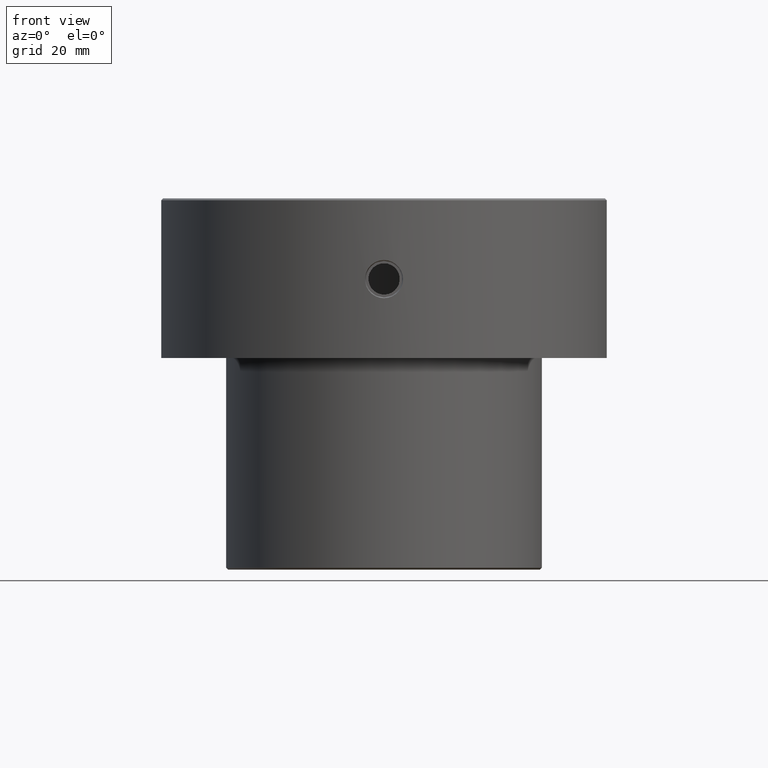
[diagram: clean part render]
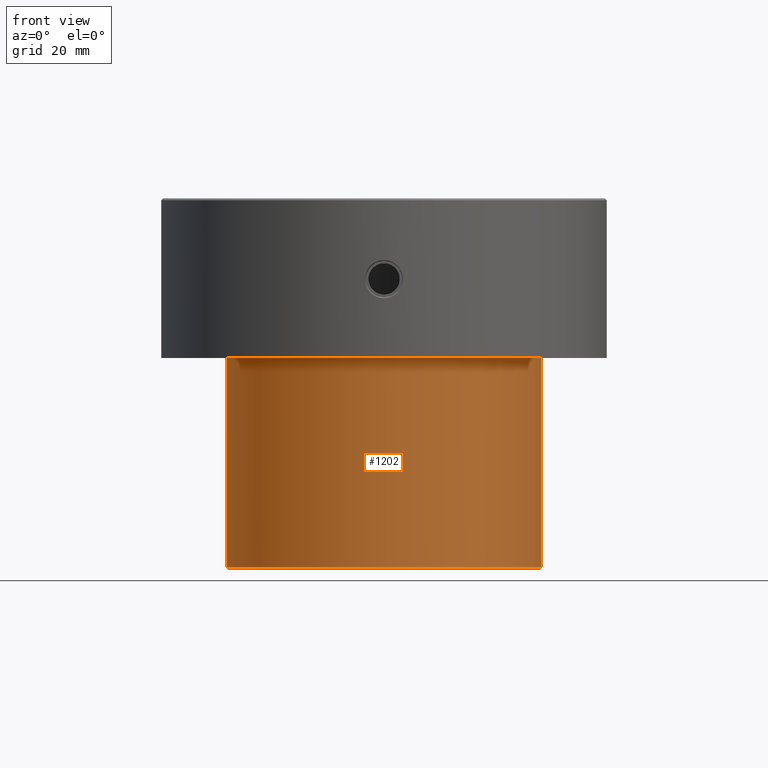
[diagram: same view with one face highlighted and labeled with its STEP entity id]
A machine part, front view. The second image highlights one B-rep face of the part: STEP entity #1202.
In plain terms, the highlighted cylindrical surface (partial cylindrical patch) has radius 42.5 mm, axis along (-0, -0, 1).
Its self-contained STEP definition (entity closure, byte-faithful):
#39 = CARTESIAN_POINT ( 'NONE',  ( 0.000000000000000000, 0.000000000000000000, 0.000000000000000000 ) ) ;
#102 = ORIENTED_EDGE ( 'NONE', *, *, #1187, .T. ) ;
#115 = VERTEX_POINT ( 'NONE', #488 ) ;
#143 = VERTEX_POINT ( 'NONE', #1073 ) ;
#221 = AXIS2_PLACEMENT_3D ( 'NONE', #606, #1003, #907 ) ;
#309 = DIRECTION ( 'NONE',  ( 1.000000000000000000, 0.000000000000000000, 0.000000000000000000 ) ) ;
#371 = ORIENTED_EDGE ( 'NONE', *, *, #492, .T. ) ;
#408 = EDGE_LOOP ( 'NONE', ( #1042, #102, #371, #1221 ) ) ;
#446 = AXIS2_PLACEMENT_3D ( 'NONE', #804, #1107, #309 ) ;
#459 = VECTOR ( 'NONE', #751, 1000.000000000000000 ) ;
#460 = LINE ( 'NONE', #750, #663 ) ;
#488 = CARTESIAN_POINT ( 'NONE',  ( -42.50000000000000000, 5.204748896376250896E-15, -99.50000000000000000 ) ) ;
#492 = EDGE_CURVE ( 'NONE', #143, #1230, #655, .T. ) ;
#580 = AXIS2_PLACEMENT_3D ( 'NONE', #39, #782, #1069 ) ;
#606 = CARTESIAN_POINT ( 'NONE',  ( 0.000000000000000000, 0.000000000000000000, -99.50000000000000000 ) ) ;
#655 = LINE ( 'NONE', #727, #459 ) ;
#663 = VECTOR ( 'NONE', #1236, 1000.000000000000000 ) ;
#727 = CARTESIAN_POINT ( 'NONE',  ( 42.50000000000000000, 0.000000000000000000, 0.000000000000000000 ) ) ;
#750 = CARTESIAN_POINT ( 'NONE',  ( -42.50000000000000000, 5.204748896376250896E-15, 0.000000000000000000 ) ) ;
#751 = DIRECTION ( 'NONE',  ( -0.000000000000000000, -0.000000000000000000, 1.000000000000000000 ) ) ;
#782 = DIRECTION ( 'NONE',  ( -0.000000000000000000, -0.000000000000000000, 1.000000000000000000 ) ) ;
#797 = VERTEX_POINT ( 'NONE', #847 ) ;
#804 = CARTESIAN_POINT ( 'NONE',  ( 0.000000000000000000, 0.000000000000000000, -43.00000000000000000 ) ) ;
#847 = CARTESIAN_POINT ( 'NONE',  ( -42.50000000000000000, 5.204748896376250896E-15, -43.00000000000000000 ) ) ;
#885 = EDGE_CURVE ( 'NONE', #115, #797, #460, .T. ) ;
#888 = CYLINDRICAL_SURFACE ( 'NONE', #580, 42.50000000000000000 ) ;
#907 = DIRECTION ( 'NONE',  ( -1.000000000000000000, 0.000000000000000000, 0.000000000000000000 ) ) ;
#914 = FACE_OUTER_BOUND ( 'NONE', #408, .T. ) ;
#997 = CIRCLE ( 'NONE', #446, 42.50000000000000000 ) ;
#1003 = DIRECTION ( 'NONE',  ( -0.000000000000000000, -0.000000000000000000, 1.000000000000000000 ) ) ;
#1042 = ORIENTED_EDGE ( 'NONE', *, *, #885, .F. ) ;
#1069 = DIRECTION ( 'NONE',  ( 1.000000000000000000, 0.000000000000000000, 0.000000000000000000 ) ) ;
#1073 = CARTESIAN_POINT ( 'NONE',  ( 42.50000000000000000, 0.000000000000000000, -99.50000000000000000 ) ) ;
#1096 = EDGE_CURVE ( 'NONE', #797, #1230, #997, .T. ) ;
#1107 = DIRECTION ( 'NONE',  ( -0.000000000000000000, -0.000000000000000000, 1.000000000000000000 ) ) ;
#1145 = CIRCLE ( 'NONE', #221, 42.50000000000000000 ) ;
#1187 = EDGE_CURVE ( 'NONE', #115, #143, #1145, .T. ) ;
#1202 = ADVANCED_FACE ( 'NONE', ( #914 ), #888, .T. ) ;
#1221 = ORIENTED_EDGE ( 'NONE', *, *, #1096, .F. ) ;
#1230 = VERTEX_POINT ( 'NONE', #1234 ) ;
#1234 = CARTESIAN_POINT ( 'NONE',  ( 42.50000000000000000, 0.000000000000000000, -43.00000000000000000 ) ) ;
#1236 = DIRECTION ( 'NONE',  ( -0.000000000000000000, -0.000000000000000000, 1.000000000000000000 ) ) ;